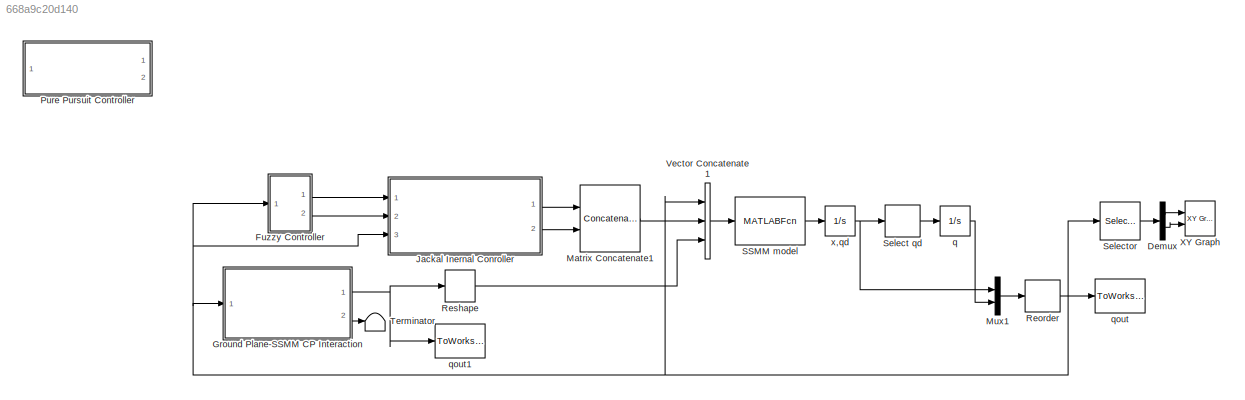
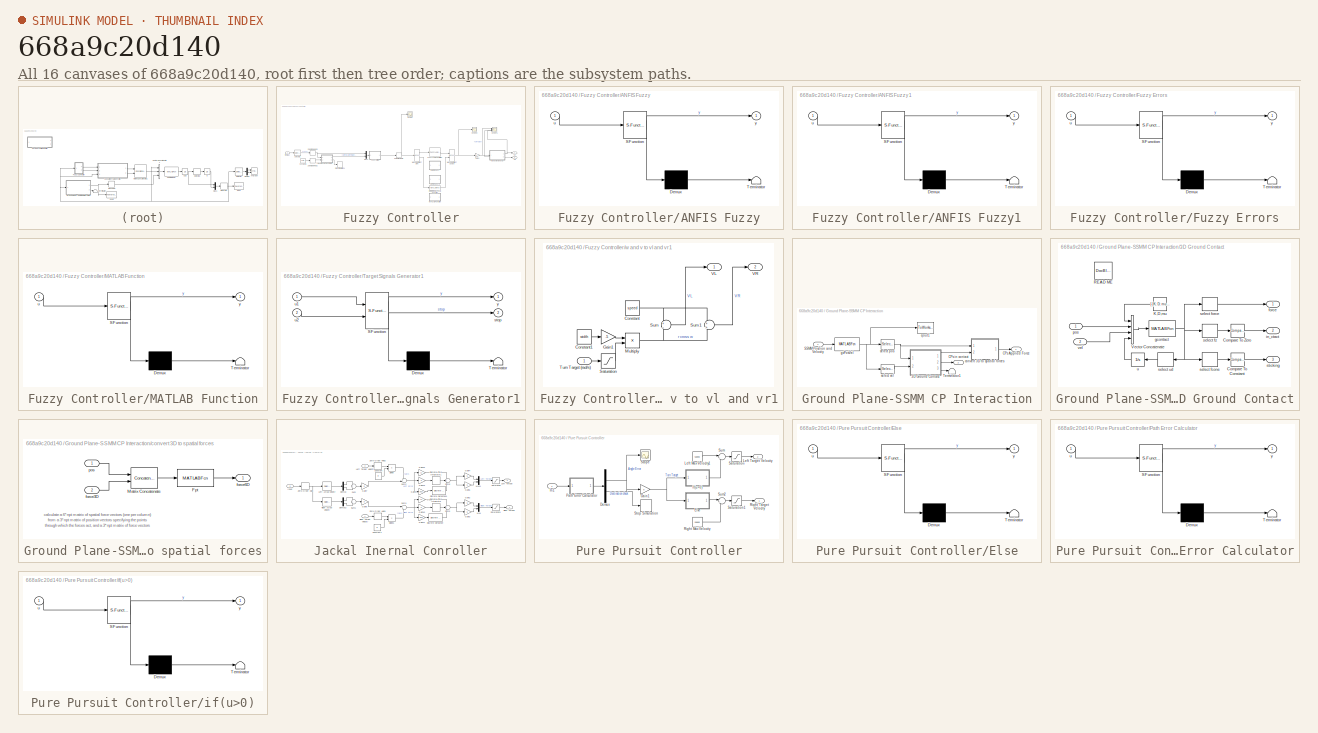
[diagram: thumbnail index - all 16 canvases of the model, root first then tree order]
MODEL slx_668a9c20d140
KIND model
CONFIG AbsTol = .01
CONFIG EnableMultiTasking = on
CONFIG FixedStep = 0.001
CONFIG InitFcn = SSMM_sim_Torque_3DOF_Init
CONFIG MaxStep = 1e-1
CONFIG MinStep = 1e-15
CONFIG RelTol = .01
CONFIG SampleTimeConstraint = Unconstrained
CONFIG SolverName = FixedStepAuto
CONFIG StartTime = 0.0
CONFIG StopTime = 240
BLOCK [Demux] Demux
  Outputs = 2
  Ports = [1, 2]
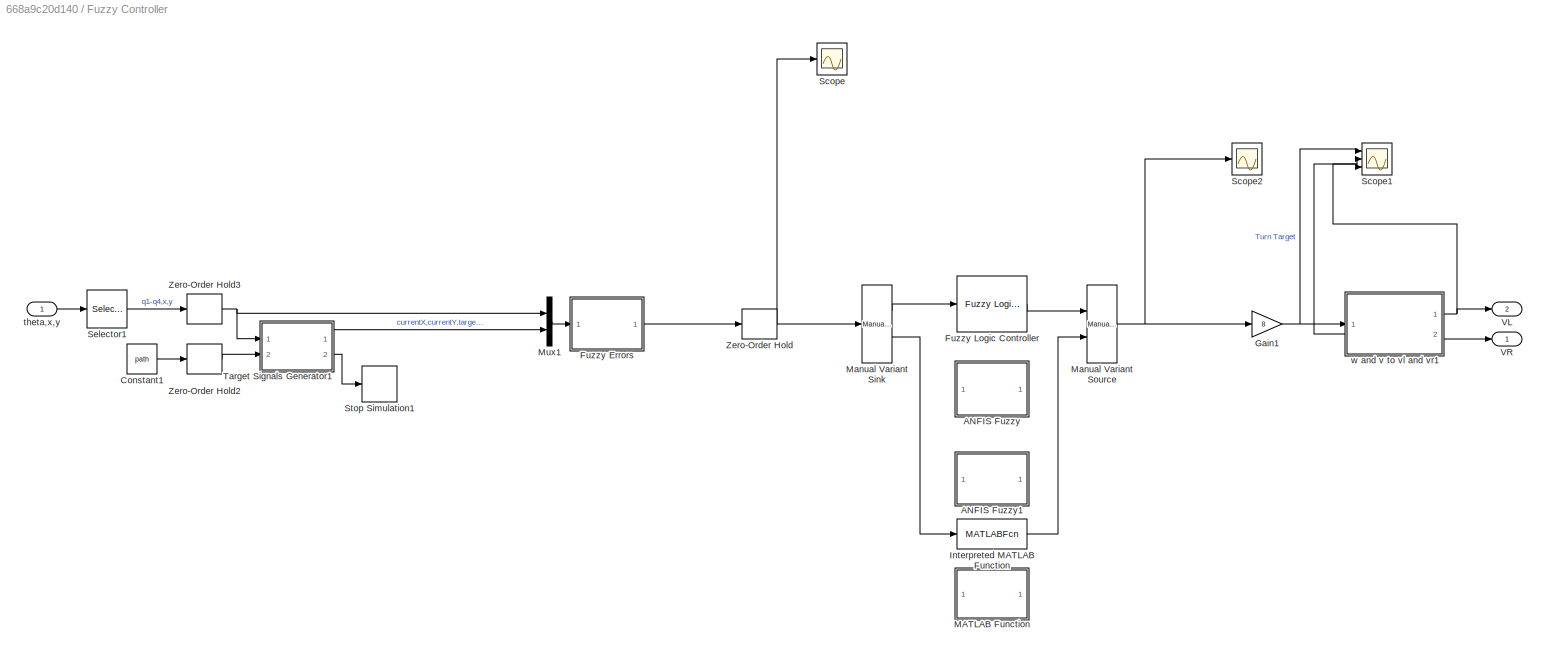
BLOCK [SubSystem] Fuzzy Controller
  Ports = [1, 2]
  RequestExecContextInheritance = off
BLOCK [SubSystem] Fuzzy Controller/ANFIS Fuzzy
  Commented = on
  ErrorFcn = Stateflow.Translate.translate
  PermitHierarchicalResolution = ExplicitOnly
  Ports = [1, 1]
  RequestExecContextInheritance = off
  SFBlockType = MATLAB Function
  TreatAsAtomicUnit = on
BLOCK [Demux] Fuzzy Controller/ANFIS Fuzzy/ Demux 
  Outputs = 1
  Ports = [1, 1]
BLOCK [S-Function] Fuzzy Controller/ANFIS Fuzzy/ SFunction 
  EnableBusSupport = on
  FunctionName = sf_sfun
  PortCounts = [1 2]
  Ports = [1, 2]
  SFcnIsStateOwnerBlock = off
  SFunctionDeploymentMode = off
  Tag = Stateflow S-Function 7
BLOCK [Terminator] Fuzzy Controller/ANFIS Fuzzy/ Terminator 
BLOCK [Inport] Fuzzy Controller/ANFIS Fuzzy/u
BLOCK [Outport] Fuzzy Controller/ANFIS Fuzzy/y
BLOCK [SubSystem] Fuzzy Controller/ANFIS Fuzzy1
  Commented = on
  ErrorFcn = Stateflow.Translate.translate
  PermitHierarchicalResolution = ExplicitOnly
  Ports = [1, 1]
  RequestExecContextInheritance = off
  SFBlockType = MATLAB Function
  TreatAsAtomicUnit = on
BLOCK [Demux] Fuzzy Controller/ANFIS Fuzzy1/ Demux 
  Outputs = 1
  Ports = [1, 1]
BLOCK [S-Function] Fuzzy Controller/ANFIS Fuzzy1/ SFunction 
  EnableBusSupport = on
  FunctionName = sf_sfun
  PortCounts = [1 2]
  Ports = [1, 2]
  SFcnIsStateOwnerBlock = off
  SFunctionDeploymentMode = off
  Tag = Stateflow S-Function 2
BLOCK [Terminator] Fuzzy Controller/ANFIS Fuzzy1/ Terminator 
BLOCK [Inport] Fuzzy Controller/ANFIS Fuzzy1/u
BLOCK [Outport] Fuzzy Controller/ANFIS Fuzzy1/y
BLOCK [Constant] Fuzzy Controller/Constant1
  Value = path
BLOCK [SubSystem] Fuzzy Controller/Fuzzy Errors
  ErrorFcn = Stateflow.Translate.translate
  PermitHierarchicalResolution = ExplicitOnly
  Ports = [1, 1]
  RequestExecContextInheritance = off
  SFBlockType = MATLAB Function
  TreatAsAtomicUnit = on
BLOCK [Demux] Fuzzy Controller/Fuzzy Errors/ Demux 
  Outputs = 1
  Ports = [1, 1]
BLOCK [S-Function] Fuzzy Controller/Fuzzy Errors/ SFunction 
  EnableBusSupport = on
  FunctionName = sf_sfun
  PortCounts = [1 2]
  Ports = [1, 2]
  SFcnIsStateOwnerBlock = off
  SFunctionDeploymentMode = off
  Tag = Stateflow S-Function 5
BLOCK [Terminator] Fuzzy Controller/Fuzzy Errors/ Terminator 
BLOCK [Inport] Fuzzy Controller/Fuzzy Errors/u
BLOCK [Outport] Fuzzy Controller/Fuzzy Errors/y
  VectorParamsAs1DForOutWhenUnconnected = off
BLOCK [Reference] Fuzzy Controller/Fuzzy Logic Controller  REF=fuzblock/Fuzzy Logic   (lib defined in mdl_858b3b3e7478)
Controller
  Ports = [1, 1]
  SourceBlock = fuzblock/Fuzzy Logic \nController
  SourceProductBaseCode = FL
  SourceType = Fuzzy Inference System
BLOCK [Gain] Fuzzy Controller/Gain1
  Gain = 8
BLOCK [MATLABFcn] Fuzzy Controller/Interpreted MATLAB Function
  MATLABFcn = ANFISFcn([[u(1), u(2), u(3)]], anfis_params)
  Output1D = off
  OutputDimensions = [1 1]
  OutputSignalType = real
  Ports = [1, 1]
BLOCK [SubSystem] Fuzzy Controller/MATLAB Function
  Commented = on
  ErrorFcn = Stateflow.Translate.translate
  PermitHierarchicalResolution = ExplicitOnly
  Ports = [1, 1]
  RequestExecContextInheritance = off
  SFBlockType = MATLAB Function
  TreatAsAtomicUnit = on
BLOCK [Demux] Fuzzy Controller/MATLAB Function/ Demux 
  Outputs = 1
  Ports = [1, 1]
BLOCK [S-Function] Fuzzy Controller/MATLAB Function/ SFunction 
  EnableBusSupport = on
  FunctionName = sf_sfun
  PortCounts = [1 2]
  Ports = [1, 2]
  SFcnIsStateOwnerBlock = off
  SFunctionDeploymentMode = off
  Tag = Stateflow S-Function 8
BLOCK [Terminator] Fuzzy Controller/MATLAB Function/ Terminator 
BLOCK [Inport] Fuzzy Controller/MATLAB Function/u
BLOCK [Outport] Fuzzy Controller/MATLAB Function/y
BLOCK [Reference] Fuzzy Controller/Manual Variant Sink  REF=simulink/Signal
Routing/Manual
Variant Sink
  Ports = [1, 2]
  SourceBlock = simulink/Signal\nRouting/Manual\nVariant Sink
  SourceProductBaseCode = SL
  SourceType = ManualVariantSink
BLOCK [Reference] Fuzzy Controller/Manual Variant Source  REF=simulink/Signal
Routing/Manual
Variant Source
  Ports = [2, 1]
  SourceBlock = simulink/Signal\nRouting/Manual\nVariant Source
  SourceProductBaseCode = SL
  SourceType = ManualVariantSource
BLOCK [Mux] Fuzzy Controller/Mux1
  DisplayOption = bar
  Inputs = 2
  Ports = [2, 1]
BLOCK [Scope] Fuzzy Controller/Scope
  Floating = off
  NumInputPorts = 1
  Ports = [1]
  ScopeSpecificationString = Simulink.scopes.TimeScopeBlockCfg('CurrentConfiguration', extmgr.ConfigurationSet(extmgr.Configuration('Core','General UI',true),extmgr.Configuration('Core','Source UI',true),extmgr.Configuration('Sources','WiredSimulink',true,'DataLoggingVariableName','fuzzy_input','DataLogging',true),extmgr.Configuration('Visuals','Time Domain',true,'SerializedDisplays',{struct('MinYLimReal','-3.5746','MaxYLimRe...<+1461ch>
BLOCK [Scope] Fuzzy Controller/Scope1
  Floating = off
  NumInputPorts = 3
  Ports = [3]
  ScopeSpecificationString = Simulink.scopes.TimeScopeBlockCfg('CurrentConfiguration', extmgr.ConfigurationSet(extmgr.Configuration('Core','General UI',true),extmgr.Configuration('Core','Source UI',true),extmgr.Configuration('Sources','WiredSimulink',true,'DataLoggingVariableName','ScopeData1'),extmgr.Configuration('Visuals','Time Domain',true,'SerializedDisplays',{struct('MinYLimReal','-6.87667','MaxYLimReal','6.87667','YLab...<+1523ch>
BLOCK [Scope] Fuzzy Controller/Scope2
  Floating = off
  NumInputPorts = 1
  Ports = [1]
  ScopeSpecificationString = Simulink.scopes.TimeScopeBlockCfg('CurrentConfiguration', extmgr.ConfigurationSet(extmgr.Configuration('Core','General UI',true),extmgr.Configuration('Core','Source UI',true),extmgr.Configuration('Sources','WiredSimulink',true,'DataLoggingVariableName','fuzzy_output','DataLogging',true),extmgr.Configuration('Visuals','Time Domain',true,'SerializedDisplays',{struct('MinYLimReal','-0.79412','MaxYLim...<+1472ch>
BLOCK [Selector] Fuzzy Controller/Selector1
  IndexOptions = Index vector (dialog)
  Indices = [1 2 3 4 5 6]
  InputPortWidth = 21
  OutputSizes = 1
  Ports = [1, 1]
BLOCK [Stop] Fuzzy Controller/Stop Simulation1
BLOCK [SubSystem] Fuzzy Controller/Target Signals Generator1
  ErrorFcn = Stateflow.Translate.translate
  PermitHierarchicalResolution = ExplicitOnly
  Ports = [2, 2]
  RequestExecContextInheritance = off
  SFBlockType = MATLAB Function
  TreatAsAtomicUnit = on
BLOCK [Demux] Fuzzy Controller/Target Signals Generator1/ Demux 
  Outputs = 1
  Ports = [1, 1]
BLOCK [S-Function] Fuzzy Controller/Target Signals Generator1/ SFunction 
  EnableBusSupport = on
  FunctionName = sf_sfun
  PortCounts = [2 3]
  Ports = [2, 3]
  SFcnIsStateOwnerBlock = off
  SFunctionDeploymentMode = off
  Tag = Stateflow S-Function 6
BLOCK [Terminator] Fuzzy Controller/Target Signals Generator1/ Terminator 
BLOCK [Outport] Fuzzy Controller/Target Signals Generator1/stop
  Port = 2
  VectorParamsAs1DForOutWhenUnconnected = off
BLOCK [Inport] Fuzzy Controller/Target Signals Generator1/u1
BLOCK [Inport] Fuzzy Controller/Target Signals Generator1/u2
  Port = 2
BLOCK [Outport] Fuzzy Controller/Target Signals Generator1/y
  VectorParamsAs1DForOutWhenUnconnected = off
BLOCK [Outport] Fuzzy Controller/VL
  Port = 2
  VectorParamsAs1DForOutWhenUnconnected = off
BLOCK [Outport] Fuzzy Controller/VR
  VectorParamsAs1DForOutWhenUnconnected = off
BLOCK [ZeroOrderHold] Fuzzy Controller/Zero-Order Hold
  SampleTime = .001
BLOCK [ZeroOrderHold] Fuzzy Controller/Zero-Order Hold2
  SampleTime = .001
BLOCK [ZeroOrderHold] Fuzzy Controller/Zero-Order Hold3
  SampleTime = .001
BLOCK [Inport] Fuzzy Controller/theta,x,y
BLOCK [SubSystem] Fuzzy Controller/w and v to vl and vr1
  Ports = [1, 2]
  RequestExecContextInheritance = off
BLOCK [Constant] Fuzzy Controller/w and v to vl and vr1/Constant
  Value = speed
BLOCK [Constant] Fuzzy Controller/w and v to vl and vr1/Constant1
  Value = width
BLOCK [Gain] Fuzzy Controller/w and v to vl and vr1/Gain1
  Gain = .5
BLOCK [Product] Fuzzy Controller/w and v to vl and vr1/Multiply
  Inputs = **
  Ports = [2, 1]
BLOCK [Saturate] Fuzzy Controller/w and v to vl and vr1/Saturation
  LowerLimit = -4
  UpperLimit = 4
BLOCK [Sum] Fuzzy Controller/w and v to vl and vr1/Sum
  Inputs = +|-
  Ports = [2, 1]
BLOCK [Sum] Fuzzy Controller/w and v to vl and vr1/Sum1
  Inputs = +|+
  Ports = [2, 1]
BLOCK [Inport] Fuzzy Controller/w and v to vl and vr1/Turn Target (rad//s)
BLOCK [Outport] Fuzzy Controller/w and v to vl and vr1/VL
  VectorParamsAs1DForOutWhenUnconnected = off
BLOCK [Outport] Fuzzy Controller/w and v to vl and vr1/VR
  Port = 2
  VectorParamsAs1DForOutWhenUnconnected = off
BLOCK [SubSystem] Ground Plane-SSMM CP Interaction
  Ports = [1, 2]
  RequestExecContextInheritance = off
BLOCK [SubSystem] Ground Plane-SSMM CP Interaction/3D Ground Contact
  Ports = [2, 3]
  RequestExecContextInheritance = off
BLOCK [Reference] Ground Plane-SSMM CP Interaction/3D Ground Contact/Compare To Constant  REF=simulink/Logic and Bit
Operations/Compare
To Constant
  Ports = [1, 1]
  SourceBlock = simulink/Logic and Bit\nOperations/Compare\nTo Constant
  SourceProductBaseCode = SL
  SourceType = Compare To Constant
BLOCK [Reference] Ground Plane-SSMM CP Interaction/3D Ground Contact/Compare To Zero  REF=simulink/Logic and Bit
Operations/Compare
To Zero
  Ports = [1, 1]
  SourceBlock = simulink/Logic and Bit\nOperations/Compare\nTo Zero
  SourceProductBaseCode = SL
  SourceType = Compare To Zero
BLOCK [Constant] Ground Plane-SSMM CP Interaction/3D Ground Contact/K,D,mu
  Value = [ [K; D; mu] zeros(3,np-1) ]
  VectorParams1D = off
BLOCK [Reference] Ground Plane-SSMM CP Interaction/3D Ground Contact/READ ME  REF=simulink/Model-Wide
Utilities/DocBlock
  Ports = []
  SourceBlock = simulink/Model-Wide\nUtilities/DocBlock
  SourceProductBaseCode = SL
  SourceType = DocBlock
  UserDataPersistent = on
BLOCK [Concatenate] Ground Plane-SSMM CP Interaction/3D Ground Contact/Vector Concatenate
  Mode = Multidimensional array
  NumInputs = 4
  Ports = [4, 1]
BLOCK [Outport] Ground Plane-SSMM CP Interaction/3D Ground Contact/force
  VectorParamsAs1DForOutWhenUnconnected = off
BLOCK [MATLABFcn] Ground Plane-SSMM CP Interaction/3D Ground Contact/gcontact
  MATLABFcn = gcontact( u(1,1), u(2,1), u(3,1), u(4:6,:), u(7:9,:), u(10:11,:) )
  Output1D = off
  OutputDimensions = [6 np]
  OutputSignalType = real
  Ports = [1, 1]
BLOCK [Outport] Ground Plane-SSMM CP Interaction/3D Ground Contact/in_ctact
  Port = 2
  VectorParamsAs1DForOutWhenUnconnected = off
BLOCK [Inport] Ground Plane-SSMM CP Interaction/3D Ground Contact/pos
BLOCK [Selector] Ground Plane-SSMM CP Interaction/3D Ground Contact/select fcone
  IndexOptions = Index vector (dialog),Select all
  Indices = [6],1
  InputPortWidth = 3
  NumberOfDimensions = 2
  OutputSizes = 1,1
  Ports = [1, 1]
BLOCK [Selector] Ground Plane-SSMM CP Interaction/3D Ground Contact/select force
  IndexOptions = Index vector (dialog),Select all
  Indices = [1 2 3],1
  InputPortWidth = 3
  NumberOfDimensions = 2
  OutputSizes = 1,1
  Ports = [1, 1]
BLOCK [Selector] Ground Plane-SSMM CP Interaction/3D Ground Contact/select fz
  IndexOptions = Index vector (dialog),Select all
  Indices = [3],1
  InputPortWidth = 3
  NumberOfDimensions = 2
  OutputSizes = 1,1
  Ports = [1, 1]
BLOCK [Selector] Ground Plane-SSMM CP Interaction/3D Ground Contact/select ud
  IndexOptions = Index vector (dialog),Select all
  Indices = [4 5],1
  InputPortWidth = 3
  NumberOfDimensions = 2
  OutputSizes = 1,1
  Ports = [1, 1]
BLOCK [Outport] Ground Plane-SSMM CP Interaction/3D Ground Contact/sticking
  Port = 3
  VectorParamsAs1DForOutWhenUnconnected = off
BLOCK [Integrator] Ground Plane-SSMM CP Interaction/3D Ground Contact/u
  Ports = [1, 1]
BLOCK [Inport] Ground Plane-SSMM CP Interaction/3D Ground Contact/vel
  Port = 2
BLOCK [Outport] Ground Plane-SSMM CP Interaction/CPs Applied Force
  VectorParamsAs1DForOutWhenUnconnected = off
BLOCK [Outport] Ground Plane-SSMM CP Interaction/CPs in contact
  Port = 2
  VectorParamsAs1DForOutWhenUnconnected = off
BLOCK [Inport] Ground Plane-SSMM CP Interaction/SSMM Position and Velocity
BLOCK [Terminator] Ground Plane-SSMM CP Interaction/Terminator1
BLOCK [SubSystem] Ground Plane-SSMM CP Interaction/convert 3D to spatial forces
  Ports = [2, 1]
  RequestExecContextInheritance = off
BLOCK [MATLABFcn] Ground Plane-SSMM CP Interaction/convert 3D to spatial forces/Fpt
  MATLABFcn = Fpt( u(4:6,:), u(1:3,:) )
  Output1D = off
  OutputSignalType = real
  Ports = [1, 1]
BLOCK [Concatenate] Ground Plane-SSMM CP Interaction/convert 3D to spatial forces/Matrix Concatenate
  Mode = Multidimensional array
  Ports = [2, 1]
BLOCK [Inport] Ground Plane-SSMM CP Interaction/convert 3D to spatial forces/force3D
  Port = 2
BLOCK [Outport] Ground Plane-SSMM CP Interaction/convert 3D to spatial forces/force6D
  VectorParamsAs1DForOutWhenUnconnected = off
BLOCK [Inport] Ground Plane-SSMM CP Interaction/convert 3D to spatial forces/pos
BLOCK [MATLABFcn] Ground Plane-SSMM CP Interaction/gcPosVel
  MATLABFcn = gcPosVel(model, u(1:13),u(14:17),u(18:21) )
  Output1D = off
  OutputDimensions = [6 CP_Num]
  OutputSignalType = real
  Ports = [1, 1]
BLOCK [ToWorkspace] Ground Plane-SSMM CP Interaction/qout1
  MaxDataPoints = inf
  Ports = [1]
  SampleTime = -1
  VariableName = PosVel
BLOCK [Selector] Ground Plane-SSMM CP Interaction/select pos
  IndexOptions = Index vector (dialog),Select all
  Indices = [1 2 3],1
  InputPortWidth = 3
  NumberOfDimensions = 2
  OutputSizes = 1,1
  Ports = [1, 1]
BLOCK [Selector] Ground Plane-SSMM CP Interaction/select vel
  IndexOptions = Index vector (dialog),Select all
  Indices = [4 5 6],1
  InputPortWidth = 3
  NumberOfDimensions = 2
  OutputSizes = 1,1
  Ports = [1, 1]
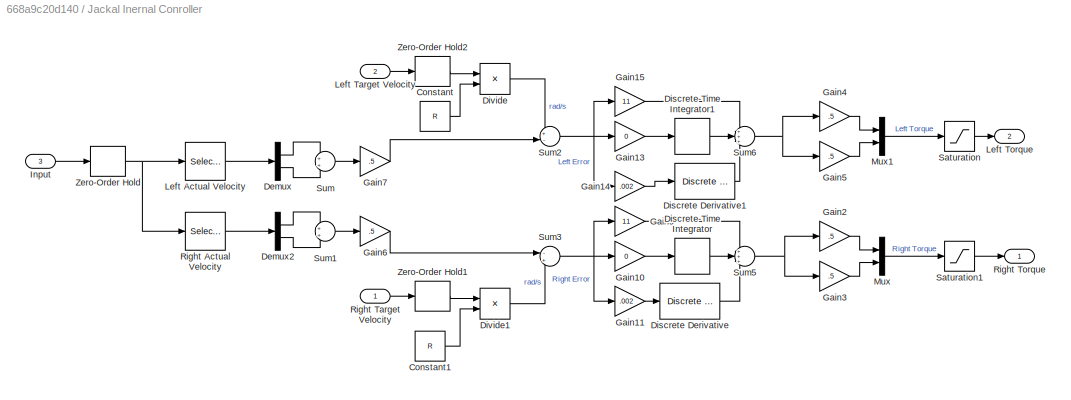
BLOCK [SubSystem] Jackal Inernal Conroller
  Ports = [3, 2]
  RequestExecContextInheritance = off
BLOCK [Constant] Jackal Inernal Conroller/Constant
  Value = R
BLOCK [Constant] Jackal Inernal Conroller/Constant1
  Value = R
BLOCK [Demux] Jackal Inernal Conroller/Demux
  Outputs = 2
  Ports = [1, 2]
BLOCK [Demux] Jackal Inernal Conroller/Demux2
  Outputs = 2
  Ports = [1, 2]
BLOCK [Reference] Jackal Inernal Conroller/Discrete Derivative  REF=simulink/Discrete/Discrete Derivative
  Ports = [1, 1]
  SourceBlock = simulink/Discrete/Discrete Derivative
  SourceProductBaseCode = SL
  SourceType = Discrete Derivative
BLOCK [Reference] Jackal Inernal Conroller/Discrete Derivative1  REF=simulink/Discrete/Discrete Derivative
  Ports = [1, 1]
  SourceBlock = simulink/Discrete/Discrete Derivative
  SourceProductBaseCode = SL
  SourceType = Discrete Derivative
BLOCK [DiscreteIntegrator] Jackal Inernal Conroller/Discrete-Time Integrator
  ICPrevOutput = DiscIntNeverNeededParam
  ICPrevScaledInput = DiscIntNeverNeededParam
  InitialConditionSetting = Auto
  IntegratorMethod = Integration: Trapezoidal
  Ports = [1, 1]
  SampleTime = -1
BLOCK [DiscreteIntegrator] Jackal Inernal Conroller/Discrete-Time Integrator1
  ICPrevOutput = DiscIntNeverNeededParam
  ICPrevScaledInput = DiscIntNeverNeededParam
  InitialConditionSetting = Auto
  Ports = [1, 1]
  SampleTime = -1
BLOCK [Product] Jackal Inernal Conroller/Divide
  Inputs = */
  Ports = [2, 1]
BLOCK [Product] Jackal Inernal Conroller/Divide1
  Inputs = */
  Ports = [2, 1]
BLOCK [Gain] Jackal Inernal Conroller/Gain10
  Gain = 0
BLOCK [Gain] Jackal Inernal Conroller/Gain11
  Gain = .002
BLOCK [Gain] Jackal Inernal Conroller/Gain13
  Gain = 0
BLOCK [Gain] Jackal Inernal Conroller/Gain14
  Gain = .002
BLOCK [Gain] Jackal Inernal Conroller/Gain15
  Gain = 11
BLOCK [Gain] Jackal Inernal Conroller/Gain2
  Gain = .5
BLOCK [Gain] Jackal Inernal Conroller/Gain3
  Gain = .5
BLOCK [Gain] Jackal Inernal Conroller/Gain4
  Gain = .5
BLOCK [Gain] Jackal Inernal Conroller/Gain5
  Gain = .5
BLOCK [Gain] Jackal Inernal Conroller/Gain6
  Gain = .5
BLOCK [Gain] Jackal Inernal Conroller/Gain7
  Gain = .5
BLOCK [Gain] Jackal Inernal Conroller/Gain9
  Gain = 11
BLOCK [Inport] Jackal Inernal Conroller/Input
  Port = 3
BLOCK [Selector] Jackal Inernal Conroller/Left Actual Velocity
  IndexOptions = Index vector (dialog)
  Indices = [20 21]
  InputPortWidth = 21
  OutputSizes = 1
  Ports = [1, 1]
BLOCK [Inport] Jackal Inernal Conroller/Left Target Velocity
  Port = 2
BLOCK [Outport] Jackal Inernal Conroller/Left Torque
  Port = 2
  VectorParamsAs1DForOutWhenUnconnected = off
BLOCK [Mux] Jackal Inernal Conroller/Mux
  DisplayOption = bar
  Inputs = 2
  Ports = [2, 1]
BLOCK [Mux] Jackal Inernal Conroller/Mux1
  DisplayOption = bar
  Inputs = 2
  Ports = [2, 1]
BLOCK [Selector] Jackal Inernal Conroller/Right Actual Velocity
  IndexOptions = Index vector (dialog)
  Indices = [18 19]
  InputPortWidth = 21
  OutputSizes = 1
  Ports = [1, 1]
BLOCK [Inport] Jackal Inernal Conroller/Right Target Velocity
BLOCK [Outport] Jackal Inernal Conroller/Right Torque
  VectorParamsAs1DForOutWhenUnconnected = off
BLOCK [Saturate] Jackal Inernal Conroller/Saturation
  LowerLimit = -1000
  UpperLimit = 1000
BLOCK [Saturate] Jackal Inernal Conroller/Saturation1
  LowerLimit = -1000
  UpperLimit = 1000
BLOCK [Sum] Jackal Inernal Conroller/Sum
  Inputs = 2
  Ports = [2, 1]
BLOCK [Sum] Jackal Inernal Conroller/Sum1
  Inputs = 2
  Ports = [2, 1]
BLOCK [Sum] Jackal Inernal Conroller/Sum2
  Inputs = +-
  Ports = [2, 1]
BLOCK [Sum] Jackal Inernal Conroller/Sum3
  Inputs = -+
  Ports = [2, 1]
BLOCK [Sum] Jackal Inernal Conroller/Sum5
  Inputs = +++
  Ports = [3, 1]
BLOCK [Sum] Jackal Inernal Conroller/Sum6
  Inputs = +++
  Ports = [3, 1]
BLOCK [ZeroOrderHold] Jackal Inernal Conroller/Zero-Order Hold
  SampleTime = .001
BLOCK [ZeroOrderHold] Jackal Inernal Conroller/Zero-Order Hold1
  SampleTime = .001
BLOCK [ZeroOrderHold] Jackal Inernal Conroller/Zero-Order Hold2
  SampleTime = .001
BLOCK [Concatenate] Matrix Concatenate1
  Mode = Multidimensional array
  Ports = [2, 1]
BLOCK [Mux] Mux1
  DisplayOption = bar
  Inputs = 2
  Ports = [2, 1]
BLOCK [SubSystem] Pure Pursuit Controller
  Commented = on
  Ports = [1, 2]
  RequestExecContextInheritance = off
BLOCK [Demux] Pure Pursuit Controller/Demux
  Outputs = 2
  Ports = [1, 2]
BLOCK [SubSystem] Pure Pursuit Controller/Else
  ErrorFcn = Stateflow.Translate.translate
  PermitHierarchicalResolution = ExplicitOnly
  Ports = [1, 1]
  RequestExecContextInheritance = off
  SFBlockType = MATLAB Function
  TreatAsAtomicUnit = on
BLOCK [Demux] Pure Pursuit Controller/Else/ Demux 
  Outputs = 1
  Ports = [1, 1]
BLOCK [S-Function] Pure Pursuit Controller/Else/ SFunction 
  EnableBusSupport = on
  FunctionName = sf_sfun
  PortCounts = [1 2]
  Ports = [1, 2]
  SFcnIsStateOwnerBlock = off
  SFunctionDeploymentMode = off
  Tag = Stateflow S-Function 4
BLOCK [Terminator] Pure Pursuit Controller/Else/ Terminator 
BLOCK [Inport] Pure Pursuit Controller/Else/u
BLOCK [Outport] Pure Pursuit Controller/Else/y
  VectorParamsAs1DForOutWhenUnconnected = off
BLOCK [Gain] Pure Pursuit Controller/Gain1
  Gain = 5
BLOCK [Inport] Pure Pursuit Controller/In1
BLOCK [Constant] Pure Pursuit Controller/Left Max Velocity1
  Value = speed
BLOCK [Outport] Pure Pursuit Controller/Left Target Velocity
  Port = 2
  VectorParamsAs1DForOutWhenUnconnected = off
BLOCK [SubSystem] Pure Pursuit Controller/Path Error Calculator
  ErrorFcn = Stateflow.Translate.translate
  PermitHierarchicalResolution = ExplicitOnly
  Ports = [1, 1]
  RequestExecContextInheritance = off
  SFBlockType = MATLAB Function
  TreatAsAtomicUnit = on
BLOCK [Demux] Pure Pursuit Controller/Path Error Calculator/ Demux 
  Outputs = 1
  Ports = [1, 1]
BLOCK [S-Function] Pure Pursuit Controller/Path Error Calculator/ SFunction 
  EnableBusSupport = on
  FunctionName = sf_sfun
  PortCounts = [1 2]
  Ports = [1, 2]
  SFcnIsStateOwnerBlock = off
  SFunctionDeploymentMode = off
  Tag = Stateflow S-Function 1
BLOCK [Terminator] Pure Pursuit Controller/Path Error Calculator/ Terminator 
BLOCK [Inport] Pure Pursuit Controller/Path Error Calculator/u
BLOCK [Outport] Pure Pursuit Controller/Path Error Calculator/y
  VectorParamsAs1DForOutWhenUnconnected = off
BLOCK [Constant] Pure Pursuit Controller/Right Max Velocity
  Value = speed
BLOCK [Outport] Pure Pursuit Controller/Right Target Velocity
  VectorParamsAs1DForOutWhenUnconnected = off
BLOCK [Saturate] Pure Pursuit Controller/Saturation
  LowerLimit = -speed
  UpperLimit = speed
BLOCK [Saturate] Pure Pursuit Controller/Saturation1
  LowerLimit = -speed
  UpperLimit = speed
BLOCK [Scope] Pure Pursuit Controller/Scope
  Floating = off
  NumInputPorts = 1
  Ports = [1]
  ScopeSpecificationString = Simulink.scopes.TimeScopeBlockCfg('CurrentConfiguration', extmgr.ConfigurationSet(extmgr.Configuration('Core','General UI',true),extmgr.Configuration('Core','Source UI',true),extmgr.Configuration('Sources','WiredSimulink',true,'DataLoggingVariableName','ScopeData1'),extmgr.Configuration('Visuals','Time Domain',true,'SerializedDisplays',{struct('MinYLimReal','-5.83064','MaxYLimReal','3.99777','YLab...<+1472ch>
BLOCK [Stop] Pure Pursuit Controller/Stop Simulation
BLOCK [Sum] Pure Pursuit Controller/Sum
  Inputs = |+-
  Ports = [2, 1]
BLOCK [Sum] Pure Pursuit Controller/Sum2
  Inputs = |++
  Ports = [2, 1]
BLOCK [SubSystem] Pure Pursuit Controller/if(u>0)
  ErrorFcn = Stateflow.Translate.translate
  PermitHierarchicalResolution = ExplicitOnly
  Ports = [1, 1]
  RequestExecContextInheritance = off
  SFBlockType = MATLAB Function
  TreatAsAtomicUnit = on
BLOCK [Demux] Pure Pursuit Controller/if(u>0)/ Demux 
  Outputs = 1
  Ports = [1, 1]
BLOCK [S-Function] Pure Pursuit Controller/if(u>0)/ SFunction 
  EnableBusSupport = on
  FunctionName = sf_sfun
  PortCounts = [1 2]
  Ports = [1, 2]
  SFcnIsStateOwnerBlock = off
  SFunctionDeploymentMode = off
  Tag = Stateflow S-Function 3
BLOCK [Terminator] Pure Pursuit Controller/if(u>0)/ Terminator 
BLOCK [Inport] Pure Pursuit Controller/if(u>0)/u
BLOCK [Outport] Pure Pursuit Controller/if(u>0)/y
  VectorParamsAs1DForOutWhenUnconnected = off
BLOCK [Selector] Reorder
  IndexOptions = Index vector (dialog)
  Indices = [1 2 3 4 5 6 7 8 9 10 11 12 13 18 19 20 21 14 15 16 17]
  InputPortWidth = 21
  OutputSizes = 1
  Ports = [1, 1]
BLOCK [Reshape] Reshape
  OutputDimensionality = Column vector (2-D)
  Ports = [1, 1]
BLOCK [MATLABFcn] SSMM model
  MATLABFcn = gcFD( model, @FDfb, u)
  Output1D = off
  OutputDimensions = [17 1]
  OutputSignalType = real
  Ports = [1, 1]
BLOCK [Selector] Select qd
  IndexOptions = Index vector (dialog)
  Indices = [14 15 16 17]
  InputPortWidth = 17
  OutputSizes = 1
  Ports = [1, 1]
BLOCK [Selector] Selector
  IndexOptions = Index vector (dialog)
  Indices = [5 6]
  InputPortWidth = 21
  OutputSizes = 1
  Ports = [1, 1]
BLOCK [Terminator] Terminator
BLOCK [Concatenate] Vector Concatenate1
  NumInputs = 3
  Ports = [3, 1]
BLOCK [Reference] XY Graph  REF=simulink/Sinks/XY Graph
  Ports = [2]
  SourceBlock = simulink/Sinks/XY Graph
  SourceProductBaseCode = SL
  SourceType = XY scope.
BLOCK [Integrator] q
  InitialCondition = q_init
  Ports = [1, 1]
BLOCK [ToWorkspace] qout
  MaxDataPoints = inf
  Ports = [1]
  SampleTime = -1
  VariableName = xout
BLOCK [ToWorkspace] qout1
  MaxDataPoints = inf
  Ports = [1]
  SampleTime = -1
  VariableName = Fout
BLOCK [Integrator] x,qd
  InitialCondition = [x_init;qd_init]
  Ports = [1, 1]
ANNOTATION Ground Plane-SSMM CP Interaction/convert 3D to spatial forces: calculate a 6*npt matrix of spatial force vectors (one per column) from a 3*npt matrix of position vectors specifying the points through which the forces act, and a 3*npt matrix of force vectors
LINE Demux:1 -> XY Graph:1
LINE Demux:2 -> XY Graph:2
LINE Fuzzy Controller/Constant1:1 -> Fuzzy Controller/Zero-Order Hold2:1
LINE Fuzzy Controller/Fuzzy Errors:1 -> Fuzzy Controller/Zero-Order Hold:1
LINE Fuzzy Controller/Fuzzy Logic Controller:1 -> Fuzzy Controller/Manual Variant Source:1
NET Fuzzy Controller/Gain1:1 -> Fuzzy Controller/Scope1:1, Fuzzy Controller/w and v to vl and vr1:1
LINE Fuzzy Controller/Interpreted MATLAB Function:1 -> Fuzzy Controller/Manual Variant Source:2
LINE Fuzzy Controller/Manual Variant Sink:1 -> Fuzzy Controller/Fuzzy Logic Controller:1
LINE Fuzzy Controller/Manual Variant Sink:2 -> Fuzzy Controller/Interpreted MATLAB Function:1
NET Fuzzy Controller/Manual Variant Source:1 -> Fuzzy Controller/Gain1:1, Fuzzy Controller/Scope2:1
LINE Fuzzy Controller/Mux1:1 -> Fuzzy Controller/Fuzzy Errors:1
LINE Fuzzy Controller/Selector1:1 -> Fuzzy Controller/Zero-Order Hold3:1
LINE Fuzzy Controller/Target Signals Generator1:1 -> Fuzzy Controller/Mux1:2
LINE Fuzzy Controller/Target Signals Generator1:2 -> Fuzzy Controller/Stop Simulation1:1
LINE Fuzzy Controller/Zero-Order Hold2:1 -> Fuzzy Controller/Target Signals Generator1:2
NET Fuzzy Controller/Zero-Order Hold3:1 -> Fuzzy Controller/Mux1:1, Fuzzy Controller/Target Signals Generator1:1
NET Fuzzy Controller/Zero-Order Hold:1 -> Fuzzy Controller/Manual Variant Sink:1, Fuzzy Controller/Scope:1
LINE Fuzzy Controller/theta,x,y:1 -> Fuzzy Controller/Selector1:1
LINE Fuzzy Controller/w and v to vl and vr1/Constant1:1 -> Fuzzy Controller/w and v to vl and vr1/Gain1:1
NET Fuzzy Controller/w and v to vl and vr1/Constant:1 -> Fuzzy Controller/w and v to vl and vr1/Sum1:1, Fuzzy Controller/w and v to vl and vr1/Sum:1
LINE Fuzzy Controller/w and v to vl and vr1/Gain1:1 -> Fuzzy Controller/w and v to vl and vr1/Multiply:1
NET Fuzzy Controller/w and v to vl and vr1/Multiply:1 -> Fuzzy Controller/w and v to vl and vr1/Sum1:2, Fuzzy Controller/w and v to vl and vr1/Sum:2
LINE Fuzzy Controller/w and v to vl and vr1/Saturation:1 -> Fuzzy Controller/w and v to vl and vr1/Multiply:2
LINE Fuzzy Controller/w and v to vl and vr1/Sum1:1 -> Fuzzy Controller/w and v to vl and vr1/VR:1
LINE Fuzzy Controller/w and v to vl and vr1/Sum:1 -> Fuzzy Controller/w and v to vl and vr1/VL:1
LINE Fuzzy Controller/w and v to vl and vr1/Turn Target (rad//s):1 -> Fuzzy Controller/w and v to vl and vr1/Saturation:1
NET Fuzzy Controller/w and v to vl and vr1:1 -> Fuzzy Controller/Scope1:2, Fuzzy Controller/VL:1
NET Fuzzy Controller/w and v to vl and vr1:2 -> Fuzzy Controller/Scope1:3, Fuzzy Controller/VR:1
LINE Fuzzy Controller:1 -> Jackal Inernal Conroller:1
LINE Fuzzy Controller:2 -> Jackal Inernal Conroller:2
LINE Ground Plane-SSMM CP Interaction/3D Ground Contact/Compare To Constant:1 -> Ground Plane-SSMM CP Interaction/3D Ground Contact/sticking:1
LINE Ground Plane-SSMM CP Interaction/3D Ground Contact/Compare To Zero:1 -> Ground Plane-SSMM CP Interaction/3D Ground Contact/in_ctact:1
LINE Ground Plane-SSMM CP Interaction/3D Ground Contact/K,D,mu:1 -> Ground Plane-SSMM CP Interaction/3D Ground Contact/Vector Concatenate:1
LINE Ground Plane-SSMM CP Interaction/3D Ground Contact/Vector Concatenate:1 -> Ground Plane-SSMM CP Interaction/3D Ground Contact/gcontact:1
NET Ground Plane-SSMM CP Interaction/3D Ground Contact/gcontact:1 -> Ground Plane-SSMM CP Interaction/3D Ground Contact/select fcone:1, Ground Plane-SSMM CP Interaction/3D Ground Contact/select force:1, Ground Plane-SSMM CP Interaction/3D Ground Contact/select fz:1, Ground Plane-SSMM CP Interaction/3D Ground Contact/select ud:1
LINE Ground Plane-SSMM CP Interaction/3D Ground Contact/pos:1 -> Ground Plane-SSMM CP Interaction/3D Ground Contact/Vector Concatenate:2
LINE Ground Plane-SSMM CP Interaction/3D Ground Contact/select fcone:1 -> Ground Plane-SSMM CP Interaction/3D Ground Contact/Compare To Constant:1
LINE Ground Plane-SSMM CP Interaction/3D Ground Contact/select force:1 -> Ground Plane-SSMM CP Interaction/3D Ground Contact/force:1
LINE Ground Plane-SSMM CP Interaction/3D Ground Contact/select fz:1 -> Ground Plane-SSMM CP Interaction/3D Ground Contact/Compare To Zero:1
LINE Ground Plane-SSMM CP Interaction/3D Ground Contact/select ud:1 -> Ground Plane-SSMM CP Interaction/3D Ground Contact/u:1
LINE Ground Plane-SSMM CP Interaction/3D Ground Contact/u:1 -> Ground Plane-SSMM CP Interaction/3D Ground Contact/Vector Concatenate:4
LINE Ground Plane-SSMM CP Interaction/3D Ground Contact/vel:1 -> Ground Plane-SSMM CP Interaction/3D Ground Contact/Vector Concatenate:3
LINE Ground Plane-SSMM CP Interaction/3D Ground Contact:1 -> Ground Plane-SSMM CP Interaction/convert 3D to spatial forces:2
LINE Ground Plane-SSMM CP Interaction/3D Ground Contact:2 -> Ground Plane-SSMM CP Interaction/CPs in contact:1
LINE Ground Plane-SSMM CP Interaction/3D Ground Contact:3 -> Ground Plane-SSMM CP Interaction/Terminator1:1
LINE Ground Plane-SSMM CP Interaction/SSMM Position and Velocity:1 -> Ground Plane-SSMM CP Interaction/gcPosVel:1
LINE Ground Plane-SSMM CP Interaction/convert 3D to spatial forces/Fpt:1 -> Ground Plane-SSMM CP Interaction/convert 3D to spatial forces/force6D:1
LINE Ground Plane-SSMM CP Interaction/convert 3D to spatial forces/Matrix Concatenate:1 -> Ground Plane-SSMM CP Interaction/convert 3D to spatial forces/Fpt:1
LINE Ground Plane-SSMM CP Interaction/convert 3D to spatial forces/force3D:1 -> Ground Plane-SSMM CP Interaction/convert 3D to spatial forces/Matrix Concatenate:2
LINE Ground Plane-SSMM CP Interaction/convert 3D to spatial forces/pos:1 -> Ground Plane-SSMM CP Interaction/convert 3D to spatial forces/Matrix Concatenate:1
LINE Ground Plane-SSMM CP Interaction/convert 3D to spatial forces:1 -> Ground Plane-SSMM CP Interaction/CPs Applied Force:1
NET Ground Plane-SSMM CP Interaction/gcPosVel:1 -> Ground Plane-SSMM CP Interaction/qout1:1, Ground Plane-SSMM CP Interaction/select pos:1, Ground Plane-SSMM CP Interaction/select vel:1
NET Ground Plane-SSMM CP Interaction/select pos:1 -> Ground Plane-SSMM CP Interaction/3D Ground Contact:1, Ground Plane-SSMM CP Interaction/convert 3D to spatial forces:1
LINE Ground Plane-SSMM CP Interaction/select vel:1 -> Ground Plane-SSMM CP Interaction/3D Ground Contact:2
NET Ground Plane-SSMM CP Interaction:1 -> Reshape:1, qout1:1
LINE Ground Plane-SSMM CP Interaction:2 -> Terminator:1
LINE Jackal Inernal Conroller/Constant1:1 -> Jackal Inernal Conroller/Divide1:2
LINE Jackal Inernal Conroller/Constant:1 -> Jackal Inernal Conroller/Divide:2
LINE Jackal Inernal Conroller/Demux2:1 -> Jackal Inernal Conroller/Sum1:1
LINE Jackal Inernal Conroller/Demux2:2 -> Jackal Inernal Conroller/Sum1:2
LINE Jackal Inernal Conroller/Demux:1 -> Jackal Inernal Conroller/Sum:1
LINE Jackal Inernal Conroller/Demux:2 -> Jackal Inernal Conroller/Sum:2
LINE Jackal Inernal Conroller/Discrete Derivative1:1 -> Jackal Inernal Conroller/Sum6:3
LINE Jackal Inernal Conroller/Discrete Derivative:1 -> Jackal Inernal Conroller/Sum5:3
LINE Jackal Inernal Conroller/Discrete-Time Integrator1:1 -> Jackal Inernal Conroller/Sum6:2
LINE Jackal Inernal Conroller/Discrete-Time Integrator:1 -> Jackal Inernal Conroller/Sum5:2
LINE Jackal Inernal Conroller/Divide1:1 -> Jackal Inernal Conroller/Sum3:2
LINE Jackal Inernal Conroller/Divide:1 -> Jackal Inernal Conroller/Sum2:1
LINE Jackal Inernal Conroller/Gain10:1 -> Jackal Inernal Conroller/Discrete-Time Integrator:1
LINE Jackal Inernal Conroller/Gain11:1 -> Jackal Inernal Conroller/Discrete Derivative:1
LINE Jackal Inernal Conroller/Gain13:1 -> Jackal Inernal Conroller/Discrete-Time Integrator1:1
LINE Jackal Inernal Conroller/Gain14:1 -> Jackal Inernal Conroller/Discrete Derivative1:1
LINE Jackal Inernal Conroller/Gain15:1 -> Jackal Inernal Conroller/Sum6:1
LINE Jackal Inernal Conroller/Gain2:1 -> Jackal Inernal Conroller/Mux:1
LINE Jackal Inernal Conroller/Gain3:1 -> Jackal Inernal Conroller/Mux:2
LINE Jackal Inernal Conroller/Gain4:1 -> Jackal Inernal Conroller/Mux1:1
LINE Jackal Inernal Conroller/Gain5:1 -> Jackal Inernal Conroller/Mux1:2
LINE Jackal Inernal Conroller/Gain6:1 -> Jackal Inernal Conroller/Sum3:1
LINE Jackal Inernal Conroller/Gain7:1 -> Jackal Inernal Conroller/Sum2:2
LINE Jackal Inernal Conroller/Gain9:1 -> Jackal Inernal Conroller/Sum5:1
LINE Jackal Inernal Conroller/Input:1 -> Jackal Inernal Conroller/Zero-Order Hold:1
LINE Jackal Inernal Conroller/Left Actual Velocity:1 -> Jackal Inernal Conroller/Demux:1
LINE Jackal Inernal Conroller/Left Target Velocity:1 -> Jackal Inernal Conroller/Zero-Order Hold2:1
LINE Jackal Inernal Conroller/Mux1:1 -> Jackal Inernal Conroller/Saturation:1
LINE Jackal Inernal Conroller/Mux:1 -> Jackal Inernal Conroller/Saturation1:1
LINE Jackal Inernal Conroller/Right Actual Velocity:1 -> Jackal Inernal Conroller/Demux2:1
LINE Jackal Inernal Conroller/Right Target Velocity:1 -> Jackal Inernal Conroller/Zero-Order Hold1:1
LINE Jackal Inernal Conroller/Saturation1:1 -> Jackal Inernal Conroller/Right Torque:1
LINE Jackal Inernal Conroller/Saturation:1 -> Jackal Inernal Conroller/Left Torque:1
LINE Jackal Inernal Conroller/Sum1:1 -> Jackal Inernal Conroller/Gain6:1
NET Jackal Inernal Conroller/Sum2:1 -> Jackal Inernal Conroller/Gain13:1, Jackal Inernal Conroller/Gain14:1, Jackal Inernal Conroller/Gain15:1
NET Jackal Inernal Conroller/Sum3:1 -> Jackal Inernal Conroller/Gain10:1, Jackal Inernal Conroller/Gain11:1, Jackal Inernal Conroller/Gain9:1
NET Jackal Inernal Conroller/Sum5:1 -> Jackal Inernal Conroller/Gain2:1, Jackal Inernal Conroller/Gain3:1
NET Jackal Inernal Conroller/Sum6:1 -> Jackal Inernal Conroller/Gain4:1, Jackal Inernal Conroller/Gain5:1
LINE Jackal Inernal Conroller/Sum:1 -> Jackal Inernal Conroller/Gain7:1
LINE Jackal Inernal Conroller/Zero-Order Hold1:1 -> Jackal Inernal Conroller/Divide1:1
LINE Jackal Inernal Conroller/Zero-Order Hold2:1 -> Jackal Inernal Conroller/Divide:1
NET Jackal Inernal Conroller/Zero-Order Hold:1 -> Jackal Inernal Conroller/Left Actual Velocity:1, Jackal Inernal Conroller/Right Actual Velocity:1
LINE Jackal Inernal Conroller:1 -> Matrix Concatenate1:1
LINE Jackal Inernal Conroller:2 -> Matrix Concatenate1:2
LINE Matrix Concatenate1:1 -> Vector Concatenate1:2
LINE Mux1:1 -> Reorder:1
NET Pure Pursuit Controller/Demux:1 -> Pure Pursuit Controller/Gain1:1, Pure Pursuit Controller/Scope:1
LINE Pure Pursuit Controller/Demux:2 -> Pure Pursuit Controller/Stop Simulation:1
LINE Pure Pursuit Controller/Else:1 -> Pure Pursuit Controller/Sum2:1
NET Pure Pursuit Controller/Gain1:1 -> Pure Pursuit Controller/Else:1, Pure Pursuit Controller/if(u>0):1
LINE Pure Pursuit Controller/In1:1 -> Pure Pursuit Controller/Path Error Calculator:1
LINE Pure Pursuit Controller/Left Max Velocity1:1 -> Pure Pursuit Controller/Sum:1
LINE Pure Pursuit Controller/Path Error Calculator:1 -> Pure Pursuit Controller/Demux:1
LINE Pure Pursuit Controller/Right Max Velocity:1 -> Pure Pursuit Controller/Sum2:2
LINE Pure Pursuit Controller/Saturation1:1 -> Pure Pursuit Controller/Right Target Velocity:1
LINE Pure Pursuit Controller/Saturation:1 -> Pure Pursuit Controller/Left Target Velocity:1
LINE Pure Pursuit Controller/Sum2:1 -> Pure Pursuit Controller/Saturation1:1
LINE Pure Pursuit Controller/Sum:1 -> Pure Pursuit Controller/Saturation:1
LINE Pure Pursuit Controller/if(u>0):1 -> Pure Pursuit Controller/Sum:2
NET Reorder:1 -> Fuzzy Controller:1, Ground Plane-SSMM CP Interaction:1, Jackal Inernal Conroller:3, Selector:1, Vector Concatenate1:1, qout:1
LINE Reshape:1 -> Vector Concatenate1:3
LINE SSMM model:1 -> x,qd:1
LINE Select qd:1 -> q:1
LINE Selector:1 -> Demux:1
LINE Vector Concatenate1:1 -> SSMM model:1
LINE q:1 -> Mux1:2
NET x,qd:1 -> Mux1:1, Select qd:1
note: NET lines group one-source signal fan-out (src -> all destinations, sorted); 1:1 wires keep LINE
CHART Pure Pursuit Controller/Path Error Calculator states=1 transitions=1
  STATE_LABEL 'eML_blk_kernel()'
  STATE_LABEL "SCRIPT:\n%the goal of this script is to check where the robot needs to go (via\n%looking at path stepoints) and if the robot needs to travel towards a\n%setpoint, it calculates the difference between the robot's actual heading\n%and what its desired heading should be to reach that point while traveling\n%in a straight line.\n\nfunction y = fcn(u)\ncoder.extrinsic('evalin', 'assignin');\npathcount = 0; path...<+1263ch>"
CHART Fuzzy Controller/ANFIS Fuzzy1 states=1 transitions=1
  STATE_LABEL 'eML_blk_kernel()'
  STATE_LABEL 'SCRIPT:\nfunction y = fcn(u)\ncoder.extrinsic(\'py.load_model.load_full_model\', \'py.torch.tensor\', \'py.torch.unsqueeze\')\ncoder.extrinsic(\'py.numpy.asarray\')\ncoder.extrinsic(\'py.list\')\npersistent anfis\n\n\nif isempty(anfis)\n    anfis = py.load_model.load_full_model("checkpoint.pth");\nend\n\no = py.list({{0}});\no = anfis(py.torch.unsqueeze(py.torch.tensor([u(1),u(2),u(3)]), int32(0)));\n\ny = [0];\ny = double...<+5ch>'
CHART Pure Pursuit Controller/if(u>0) states=1 transitions=1
  STATE_LABEL 'eML_blk_kernel()'
  STATE_LABEL 'SCRIPT:\nfunction y = fcn(u)\nif(u>0)\n    y = u;\nelse\n    y=0;\nend\n'
CHART Pure Pursuit Controller/Else states=1 transitions=1
  STATE_LABEL 'eML_blk_kernel()'
  STATE_LABEL 'SCRIPT:\nfunction y = fcn(u)\nif(u<=0)\n    y=u;\nelse\n    y=0;\nend\n'
CHART Fuzzy Controller/Fuzzy Errors states=1 transitions=1
  STATE_LABEL 'eML_blk_kernel()'
  STATE_LABEL 'SCRIPT:\nfunction y  = fcn(u)\n\n%jackal dyanamic model\npos=[u(5) u(6)]; % [x,y]\nq=[u(1) u(2) u(3) u(4)]; % orientation quaternion\ncurrentAngle=atan2(2*(q(1)*q(4)+q(2)*q(3)),1-2*(q(3)^2+q(4)^2));% Angle robot is currently facing\n\ncurrentPoint=[u(7) u(8)];\ntarget=[u(9) u(10)];\nfuture=[u(11) u(12)];\n\nA = [(currentPoint(2)-target(2)), target(1)-currentPoint(1); target(1)-currentPoint(1), target(2)-curre...<+1389ch>'
CHART Fuzzy Controller/Target Signals Generator1 states=1 transitions=1
  STATE_LABEL 'eML_blk_kernel()'
  STATE_LABEL 'SCRIPT:\nfunction [y,stop] = fcn(u1,u2)\n\npersistent pathcount;\npersistent pathlength;\npersistent path; %error in code, initially used path but this is already a matlab function\npersistent pathPre;\n\nif isempty(pathcount)\n   pathcount=1;     \n   pathPre=u2;\n   [pathlength,~]=size(pathPre);  \n   path=[pathPre; pathPre(pathlength,1)+100 pathPre(pathlength,2)+100]; %sim takes multiple iterations to stop...<+1089ch>'
CHART Fuzzy Controller/ANFIS Fuzzy states=1 transitions=1
  STATE_LABEL 'eML_blk_kernel()'
  STATE_LABEL 'SCRIPT:\nfunction y = fcn(u)\ncoder.extrinsic("importONNXFunction")\ncoder.extrinsic("regexprep")\n\npersistent anfis_params\n\nif isempty(anfis_params)\n    modelfile = \'<userpath><path>\';\n    anfis_params = importONNXFunction(modelfile,\'ANFISFcn\');\n    %anfis_params = feval(\'importONNXFunction\',modelfile, \'ANFISFcn\');\n    disp(anfis_params);\n\n    file = \'ANFISFcn.m\';\n\n ...<+439ch>'
CHART Fuzzy Controller/MATLAB Function states=1 transitions=1
  STATE_LABEL 'eML_blk_kernel()'
  STATE_LABEL 'SCRIPT:\nfunction y = fcn(u)\n\ncoder.extrinsic(\'evalin\', \'assignin\');\n\nanfis_params = evalin("base", "anfis_params");\n\ny = [0];\ny = ANFISFcn([[u(1), u(2), u(3)]], anfis_params);'
CHART  states=0 transitions=0
CHART  states=0 transitions=0
CHART  states=0 transitions=0
CHART  states=0 transitions=0
CHART  states=0 transitions=0
CHART  states=0 transitions=0
CHART  states=0 transitions=0
CHART  states=0 transitions=0
note: 1 file-system path scrubbed to <path> (not preserved elsewhere — flat text is the only slx artifact)
